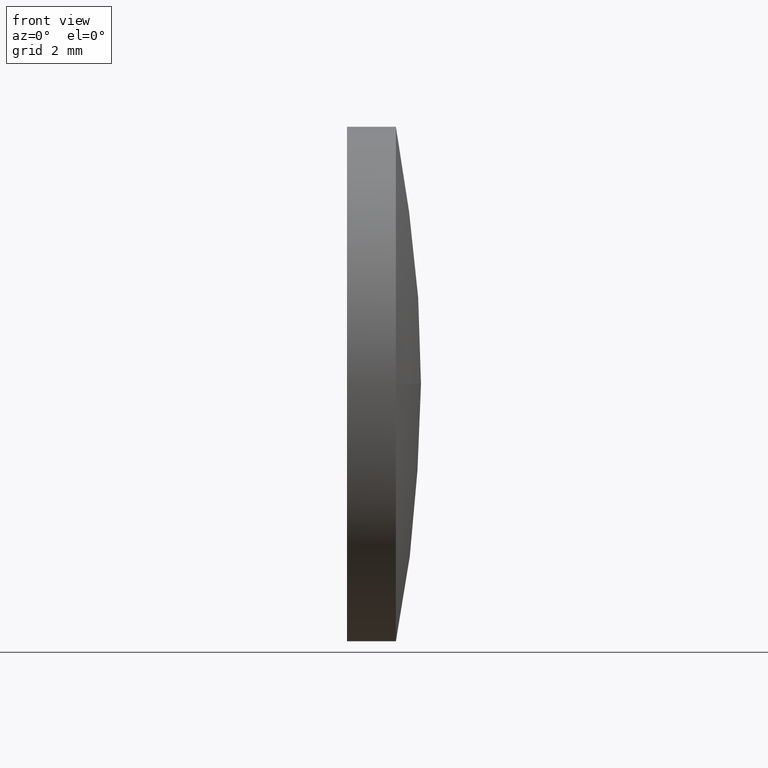
[diagram: clean part render]
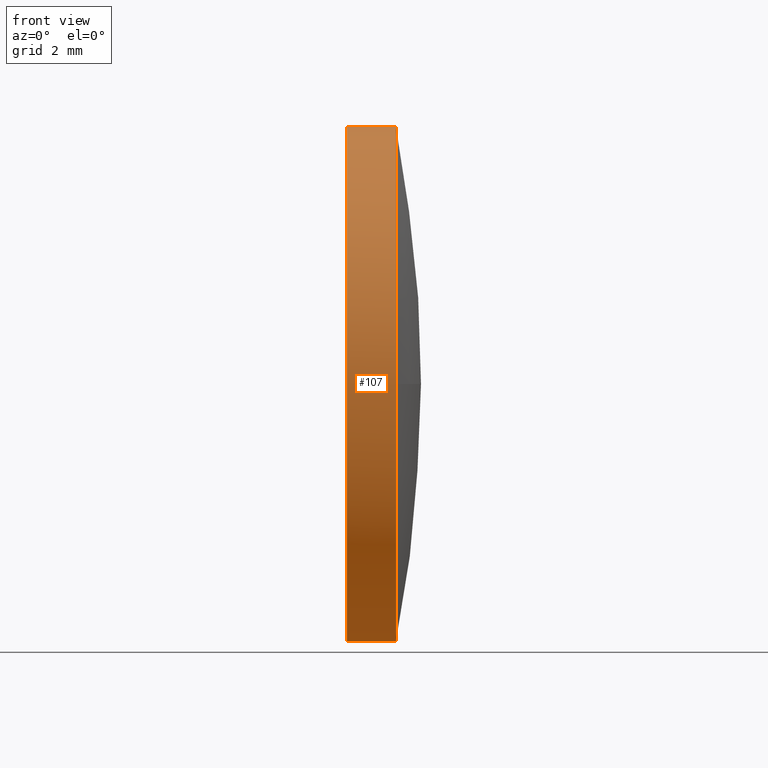
[diagram: same view with one face highlighted and labeled with its STEP entity id]
A machine part, front view. The second image highlights one B-rep face of the part: STEP entity #107.
In plain terms, the highlighted cylindrical surface (partial cylindrical patch) has radius 8 mm, axis along (-1, -0, -0).
Its self-contained STEP definition (entity closure, byte-faithful):
#7 = DIRECTION ( 'NONE',  ( 0.0000000000000000000, 0.0000000000000000000, 1.000000000000000000 ) ) ;
#13 = CARTESIAN_POINT ( 'NONE',  ( 606.2015567794326200, 147.6021442105515000, 0.0000000000000000000 ) ) ;
#20 = EDGE_CURVE ( 'NONE', #46, #178, #84, .T. ) ;
#22 = VECTOR ( 'NONE', #74, 1000.000000000000000 ) ;
#23 = DIRECTION ( 'NONE',  ( -1.000000000000000000, -0.0000000000000000000, -0.0000000000000000000 ) ) ;
#24 = CARTESIAN_POINT ( 'NONE',  ( 608.1243734842782900, 147.6021442105515000, 7.999999999999979600 ) ) ;
#25 = CARTESIAN_POINT ( 'NONE',  ( 606.2015567794326200, 147.6021442105515000, -7.999999999999979600 ) ) ;
#26 = CARTESIAN_POINT ( 'NONE',  ( 609.6443734842783900, 147.6021442105515000, 0.0000000000000000000 ) ) ;
#29 = EDGE_LOOP ( 'NONE', ( #156, #147, #92, #81, #155 ) ) ;
#31 = DIRECTION ( 'NONE',  ( -1.000000000000000000, -0.0000000000000000000, -0.0000000000000000000 ) ) ;
#38 = CIRCLE ( 'NONE', #174, 7.999999999999979600 ) ;
#41 = CARTESIAN_POINT ( 'NONE',  ( 608.1243734842782900, 147.6021442105515000, -7.999999999999979600 ) ) ;
#46 = VERTEX_POINT ( 'NONE', #133 ) ;
#65 = DIRECTION ( 'NONE',  ( -1.000000000000000000, -0.0000000000000000000, -0.0000000000000000000 ) ) ;
#68 = CYLINDRICAL_SURFACE ( 'NONE', #113, 7.999999999999979600 ) ;
#71 = DIRECTION ( 'NONE',  ( -1.000000000000000000, -0.0000000000000000000, -0.0000000000000000000 ) ) ;
#74 = DIRECTION ( 'NONE',  ( -1.000000000000000000, -0.0000000000000000000, -0.0000000000000000000 ) ) ;
#78 = LINE ( 'NONE', #103, #144 ) ;
#81 = ORIENTED_EDGE ( 'NONE', *, *, #138, .T. ) ;
#82 = FACE_OUTER_BOUND ( 'NONE', #29, .T. ) ;
#84 = CIRCLE ( 'NONE', #157, 7.999999999999979600 ) ;
#85 = DIRECTION ( 'NONE',  ( 0.0000000000000000000, 0.0000000000000000000, 1.000000000000000000 ) ) ;
#90 = EDGE_CURVE ( 'NONE', #117, #137, #119, .T. ) ;
#92 = ORIENTED_EDGE ( 'NONE', *, *, #20, .T. ) ;
#103 = CARTESIAN_POINT ( 'NONE',  ( 606.2015567794326200, 147.6021442105515000, 7.999999999999979600 ) ) ;
#107 = ADVANCED_FACE ( 'NONE', ( #82 ), #68, .T. ) ;
#112 = DIRECTION ( 'NONE',  ( -1.000000000000000000, -0.0000000000000000000, -0.0000000000000000000 ) ) ;
#113 = AXIS2_PLACEMENT_3D ( 'NONE', #13, #31, #128 ) ;
#117 = VERTEX_POINT ( 'NONE', #123 ) ;
#119 = LINE ( 'NONE', #25, #22 ) ;
#122 = CARTESIAN_POINT ( 'NONE',  ( 608.1243734842782900, 147.6021442105515000, 0.0000000000000000000 ) ) ;
#123 = CARTESIAN_POINT ( 'NONE',  ( 609.6443734842783900, 147.6021442105515000, -7.999999999999979600 ) ) ;
#124 = CIRCLE ( 'NONE', #164, 7.999999999999979600 ) ;
#127 = EDGE_CURVE ( 'NONE', #137, #152, #124, .T. ) ;
#128 = DIRECTION ( 'NONE',  ( 0.0000000000000000000, 0.0000000000000000000, 1.000000000000000000 ) ) ;
#133 = CARTESIAN_POINT ( 'NONE',  ( 609.6443734842783900, 139.6021442105515000, -9.797174393178782300E-016 ) ) ;
#137 = VERTEX_POINT ( 'NONE', #41 ) ;
#138 = EDGE_CURVE ( 'NONE', #178, #152, #78, .T. ) ;
#144 = VECTOR ( 'NONE', #23, 1000.000000000000000 ) ;
#147 = ORIENTED_EDGE ( 'NONE', *, *, #161, .T. ) ;
#148 = CARTESIAN_POINT ( 'NONE',  ( 609.6443734842783900, 147.6021442105515000, 0.0000000000000000000 ) ) ;
#152 = VERTEX_POINT ( 'NONE', #24 ) ;
#155 = ORIENTED_EDGE ( 'NONE', *, *, #127, .F. ) ;
#156 = ORIENTED_EDGE ( 'NONE', *, *, #90, .F. ) ;
#157 = AXIS2_PLACEMENT_3D ( 'NONE', #148, #65, #7 ) ;
#161 = EDGE_CURVE ( 'NONE', #117, #46, #38, .T. ) ;
#164 = AXIS2_PLACEMENT_3D ( 'NONE', #122, #112, #85 ) ;
#169 = DIRECTION ( 'NONE',  ( 0.0000000000000000000, 0.0000000000000000000, 1.000000000000000000 ) ) ;
#170 = CARTESIAN_POINT ( 'NONE',  ( 609.6443734842783900, 147.6021442105515000, 7.999999999999979600 ) ) ;
#174 = AXIS2_PLACEMENT_3D ( 'NONE', #26, #71, #169 ) ;
#178 = VERTEX_POINT ( 'NONE', #170 ) ;